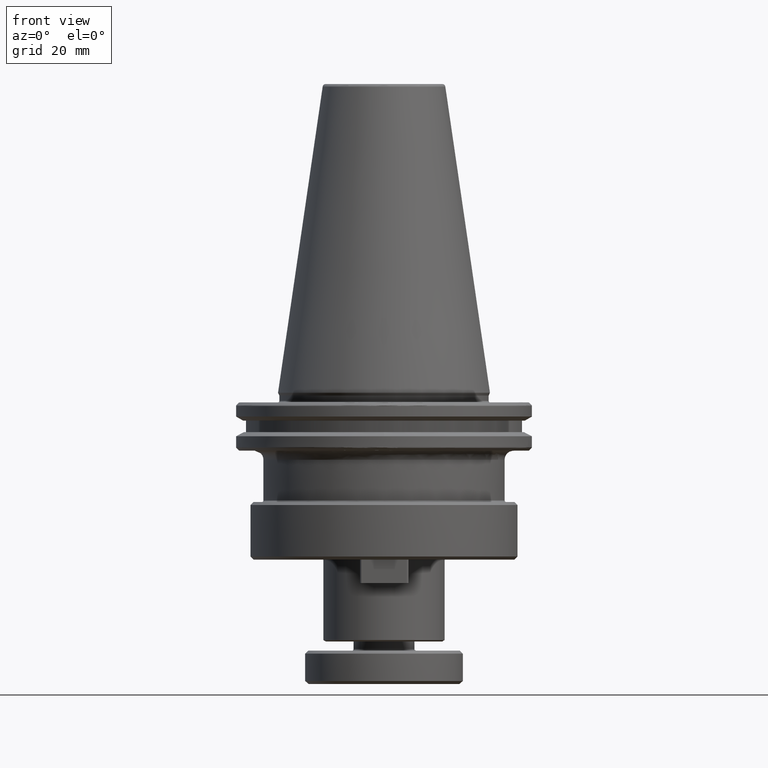
[diagram: clean part render]
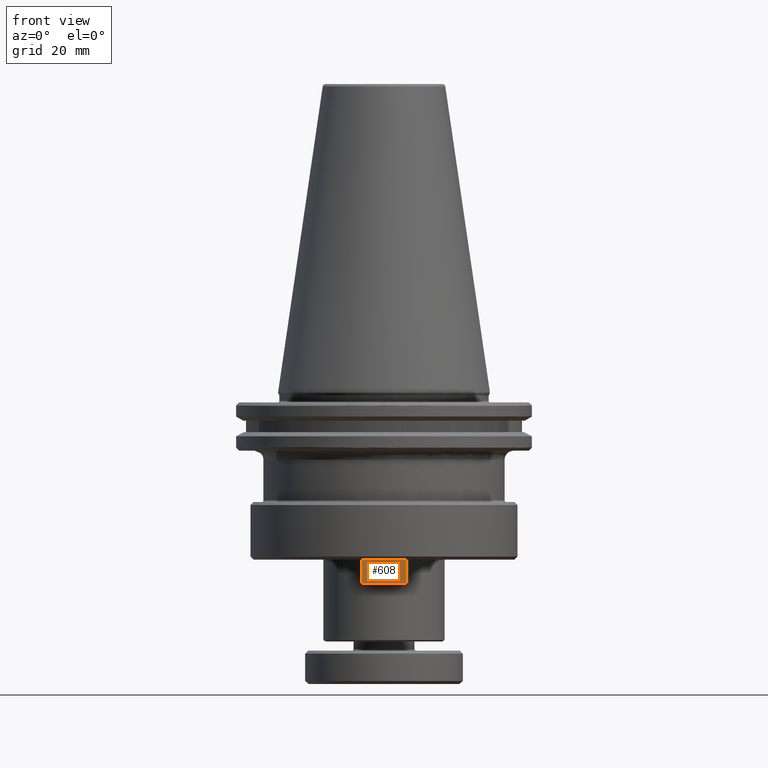
[diagram: same view with one face highlighted and labeled with its STEP entity id]
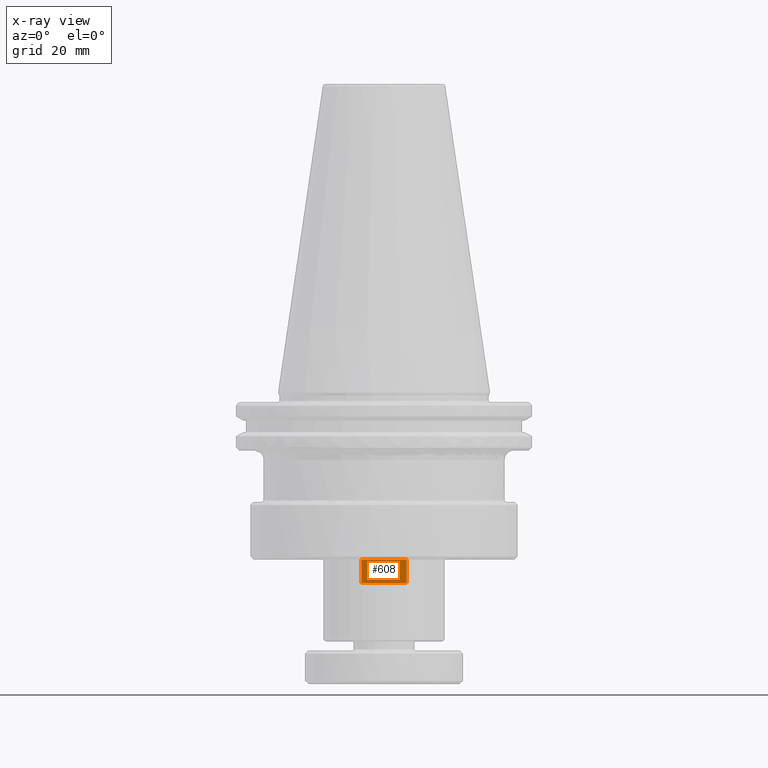
[diagram: x-ray of the same camera — body ghosted, the highlighted face saturated]
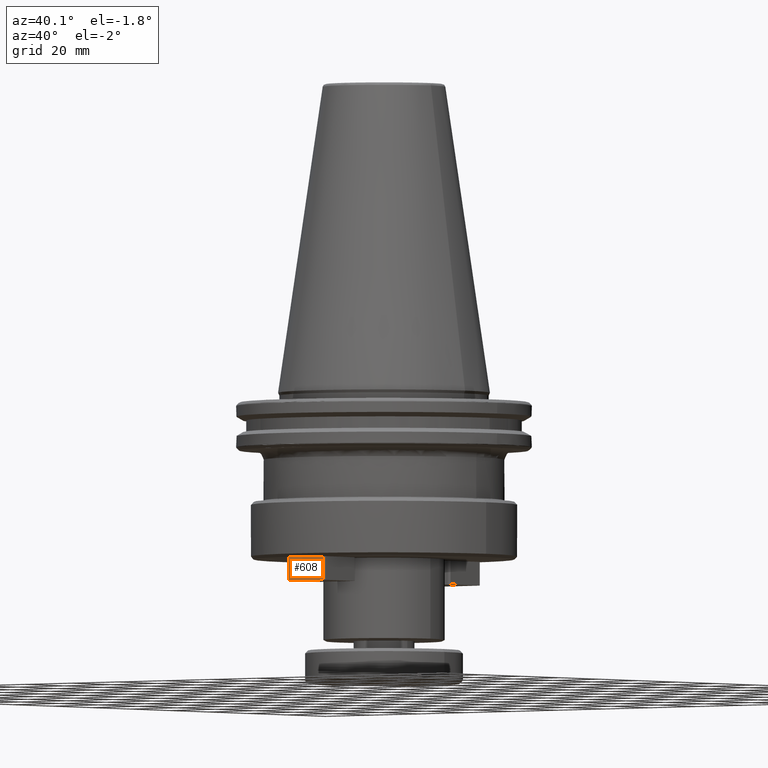
[diagram: same view with one face highlighted and labeled with its STEP entity id]
A machine part, front view. The second image highlights one B-rep face of the part: STEP entity #608.
The next image is the same camera in x-ray: the body ghosted, the highlighted face saturated — about 0% of this face is hidden behind the body in this view.
A second angle (auxiliary view) of the same face is appended — the face is thin or edge-on in the first view.
In plain terms, the highlighted planar face has unit normal (0, 1, 0).
Its self-contained STEP definition (entity closure, byte-faithful):
#60 = CARTESIAN_POINT ( 'NONE',  ( 7.499999999999961800, -40.00000000000000700, -54.99999999999999300 ) ) ;
#182 = CARTESIAN_POINT ( 'NONE',  ( -7.999999999999992900, -40.00000000000000700, -62.79999999999999700 ) ) ;
#250 = DIRECTION ( 'NONE',  ( -1.000000000000000000, -0.0000000000000000000, 0.0000000000000000000 ) ) ;
#358 = VECTOR ( 'NONE', #4077, 1000.000000000000000 ) ;
#369 = DIRECTION ( 'NONE',  ( 0.0000000000000000000, -0.0000000000000000000, 1.000000000000000000 ) ) ;
#370 = CARTESIAN_POINT ( 'NONE',  ( -7.499999999999967100, -40.00000000000000700, -62.79999999999999700 ) ) ;
#371 = DIRECTION ( 'NONE',  ( 0.0000000000000000000, 1.000000000000000000, 0.0000000000000000000 ) ) ;
#380 = CARTESIAN_POINT ( 'NONE',  ( -7.999999999999992900, -40.00000000000000700, -62.79999999999999700 ) ) ;
#383 = PLANE ( 'NONE',  #3821 ) ;
#608 = ADVANCED_FACE ( 'NONE', ( #3754 ), #383, .F. ) ;
#672 = EDGE_CURVE ( 'NONE', #2186, #4856, #3447, .T. ) ;
#745 = VERTEX_POINT ( 'NONE', #60 ) ;
#921 = CARTESIAN_POINT ( 'NONE',  ( 0.0000000000000000000, -40.00000000000000700, -55.00000000000000000 ) ) ;
#1126 = VECTOR ( 'NONE', #1522, 1000.000000000000000 ) ;
#1163 = ORIENTED_EDGE ( 'NONE', *, *, #672, .F. ) ;
#1267 = ORIENTED_EDGE ( 'NONE', *, *, #2363, .F. ) ;
#1304 = ORIENTED_EDGE ( 'NONE', *, *, #4320, .F. ) ;
#1482 = LINE ( 'NONE', #2119, #1591 ) ;
#1522 = DIRECTION ( 'NONE',  ( 1.000000000000000000, -0.0000000000000000000, 0.0000000000000000000 ) ) ;
#1591 = VECTOR ( 'NONE', #2098, 1000.000000000000000 ) ;
#1714 = EDGE_CURVE ( 'NONE', #1892, #745, #2008, .T. ) ;
#1892 = VERTEX_POINT ( 'NONE', #2317 ) ;
#2008 = LINE ( 'NONE', #921, #1126 ) ;
#2098 = DIRECTION ( 'NONE',  ( 0.0000000000000000000, -0.0000000000000000000, 1.000000000000000000 ) ) ;
#2119 = CARTESIAN_POINT ( 'NONE',  ( -7.499999999999966200, -40.00000000000000700, -62.79999999999999700 ) ) ;
#2186 = VERTEX_POINT ( 'NONE', #2546 ) ;
#2317 = CARTESIAN_POINT ( 'NONE',  ( -7.499999999999966200, -40.00000000000000700, -55.00000000000000000 ) ) ;
#2363 = EDGE_CURVE ( 'NONE', #4856, #1892, #1482, .T. ) ;
#2546 = CARTESIAN_POINT ( 'NONE',  ( 7.499999999999960000, -40.00000000000000700, -62.79999999999999700 ) ) ;
#2655 = CARTESIAN_POINT ( 'NONE',  ( 7.499999999999965400, -40.00000000000000700, -62.79999999999999700 ) ) ;
#3447 = LINE ( 'NONE', #182, #3968 ) ;
#3609 = ORIENTED_EDGE ( 'NONE', *, *, #1714, .F. ) ;
#3754 = FACE_OUTER_BOUND ( 'NONE', #4628, .T. ) ;
#3821 = AXIS2_PLACEMENT_3D ( 'NONE', #380, #371, #369 ) ;
#3968 = VECTOR ( 'NONE', #250, 1000.000000000000000 ) ;
#4077 = DIRECTION ( 'NONE',  ( -0.0000000000000000000, 0.0000000000000000000, -1.000000000000000000 ) ) ;
#4320 = EDGE_CURVE ( 'NONE', #745, #2186, #4776, .T. ) ;
#4628 = EDGE_LOOP ( 'NONE', ( #1304, #3609, #1267, #1163 ) ) ;
#4776 = LINE ( 'NONE', #2655, #358 ) ;
#4856 = VERTEX_POINT ( 'NONE', #370 ) ;